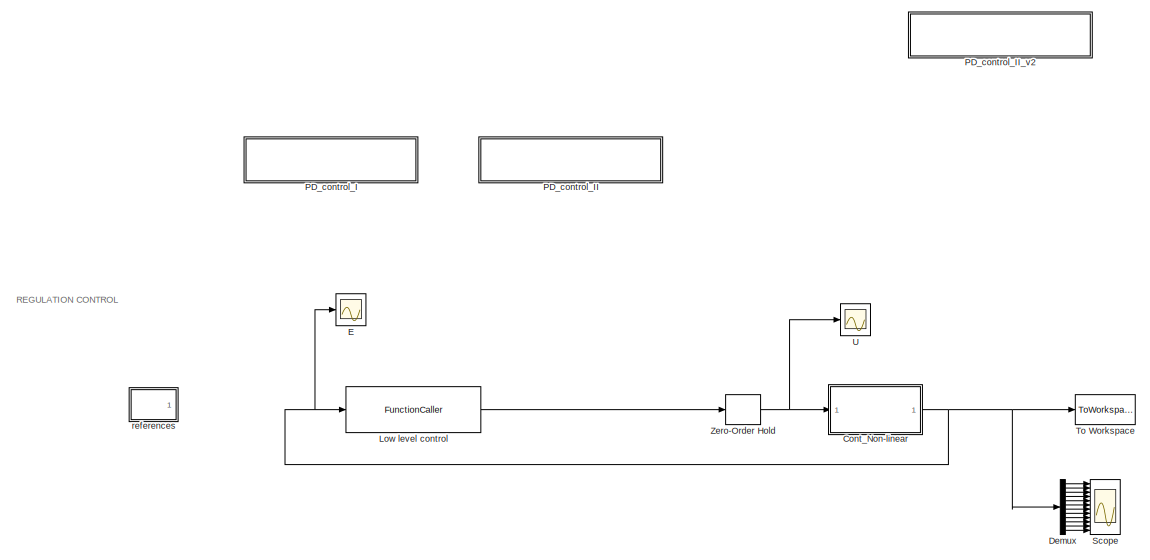
[diagram: root canvas - part 1/2, full width, top band]
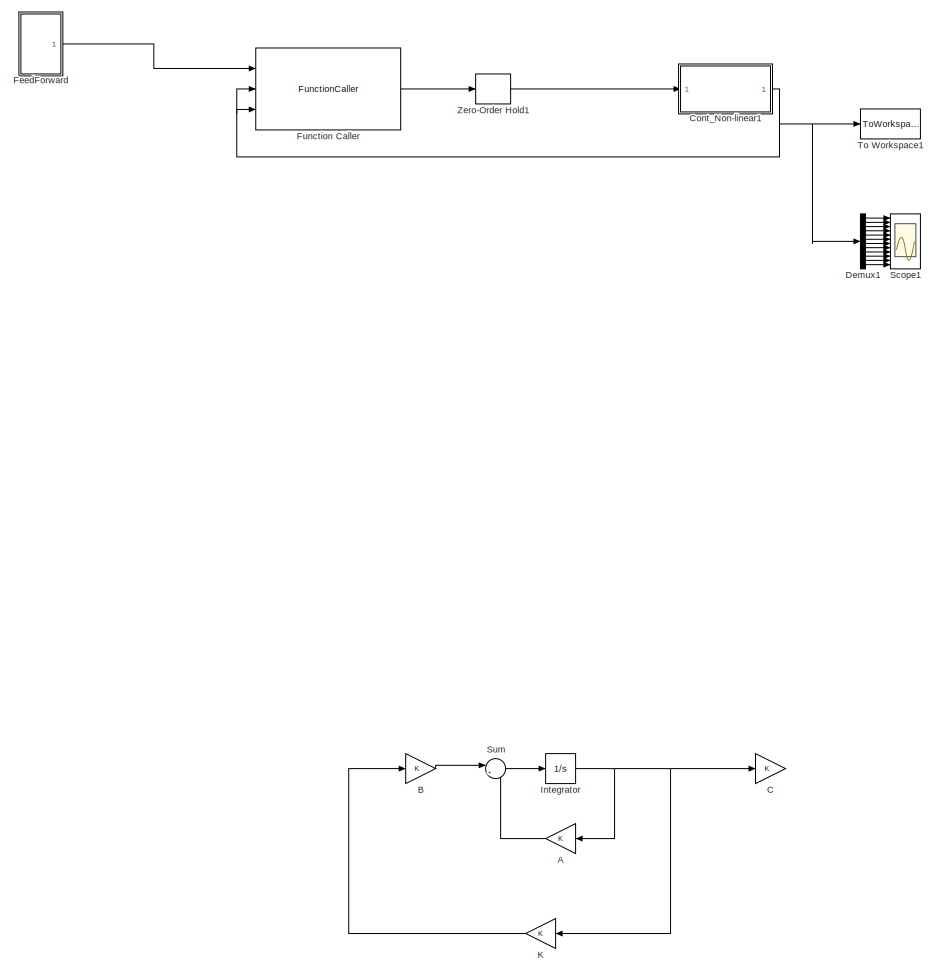
[diagram: root canvas - part 2/2, full width, bottom band]
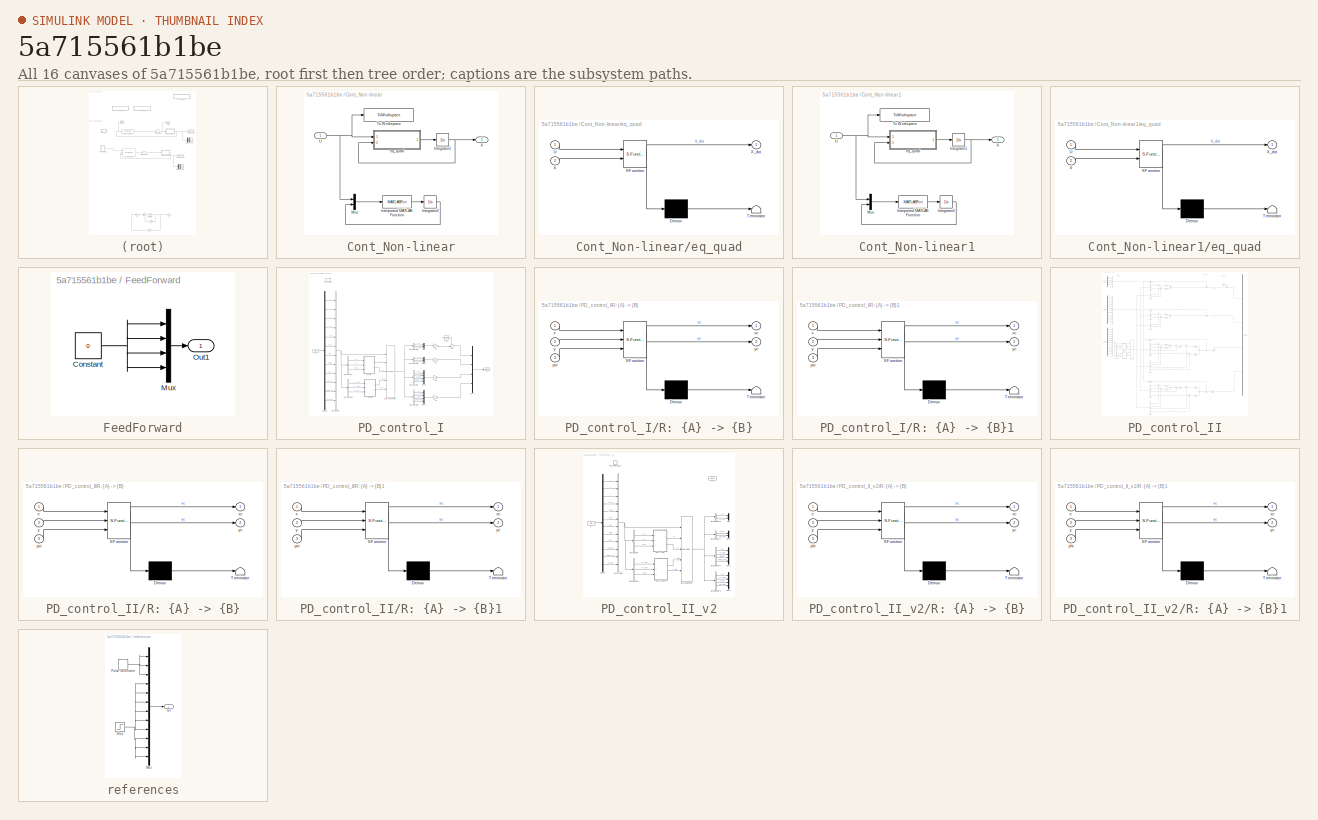
[diagram: thumbnail index - all 16 canvases of the model, root first then tree order]
MODEL slx_5a715561b1be
KIND model
CONFIG AbsTol = auto
CONFIG FixedStep = auto
CONFIG MaxStep = auto
CONFIG MinStep = auto
CONFIG RelTol = 1e-3
CONFIG SampleTimeConstraint = Unconstrained
CONFIG Solver = ode45
CONFIG SolverMode = Auto
CONFIG SolverName = ode45
CONFIG StartTime = 0.0
CONFIG StopTime = 1
BLOCK [Gain] A
  Commented = on
  OutDataTypeStr = Inherit: Inherit via internal rule
  ParamDataTypeStr = Inherit: Inherit via internal rule
  SaturateOnIntegerOverflow = off
BLOCK [Gain] B
  Commented = on
  OutDataTypeStr = Inherit: Inherit via internal rule
  ParamDataTypeStr = Inherit: Inherit via internal rule
  SaturateOnIntegerOverflow = off
BLOCK [Gain] C
  Commented = on
  OutDataTypeStr = Inherit: Inherit via internal rule
  ParamDataTypeStr = Inherit: Inherit via internal rule
  SaturateOnIntegerOverflow = off
BLOCK [SubSystem] Cont_Non-linear
  Ports = [1, 1]
  RequestExecContextInheritance = off
BLOCK [Integrator] Cont_Non-linear/Integrator1
  InitialCondition = state_init
  Ports = [1, 1]
BLOCK [Integrator] Cont_Non-linear/Integrator2
  Commented = on
  InitialCondition = state_init
  Ports = [1, 1]
BLOCK [MATLABFcn] Cont_Non-linear/Interpreted MATLAB Function
  Commented = on
  MATLABFcn = eq_quad_2
  Ports = [1, 1]
BLOCK [Mux] Cont_Non-linear/Mux
  Commented = on
  DisplayOption = bar
  Inputs = 2
  Ports = [2, 1]
BLOCK [ToWorkspace] Cont_Non-linear/To Workspace
  FixptAsFi = on
  MaxDataPoints = inf
  Ports = [1]
  SampleTime = -1
  Save2DSignal = 3-D array (concatenate along third dimension)
  SaveFormat = Timeseries
  VariableName = U_into_states
BLOCK [Inport] Cont_Non-linear/U
  IconDisplay = Port number
BLOCK [Outport] Cont_Non-linear/X
  IconDisplay = Port number
BLOCK [SubSystem] Cont_Non-linear/eq_quad
  ErrorFcn = Stateflow.Translate.translate
  PermitHierarchicalResolution = ExplicitOnly
  Ports = [2, 1]
  RequestExecContextInheritance = off
  SFBlockType = MATLAB Function
  TreatAsAtomicUnit = on
BLOCK [Demux] Cont_Non-linear/eq_quad/ Demux 
  Outputs = 1
  Ports = [1, 1]
BLOCK [S-Function] Cont_Non-linear/eq_quad/ SFunction 
  EnableBusSupport = on
  FunctionName = sf_sfun
  PortCounts = [2 2]
  Ports = [2, 2]
  Tag = Stateflow S-Function PD_sim 2
BLOCK [Terminator] Cont_Non-linear/eq_quad/ Terminator 
BLOCK [Inport] Cont_Non-linear/eq_quad/U
  IconDisplay = Port number
BLOCK [Inport] Cont_Non-linear/eq_quad/X
  IconDisplay = Port number
  Port = 2
BLOCK [Outport] Cont_Non-linear/eq_quad/X_dot
  IconDisplay = Port number
BLOCK [SubSystem] Cont_Non-linear1
  Ports = [1, 1]
  RequestExecContextInheritance = off
BLOCK [Integrator] Cont_Non-linear1/Integrator1
  InitialCondition = state_init
  Ports = [1, 1]
BLOCK [Integrator] Cont_Non-linear1/Integrator2
  Commented = on
  InitialCondition = state_init
  Ports = [1, 1]
BLOCK [MATLABFcn] Cont_Non-linear1/Interpreted MATLAB Function
  Commented = on
  MATLABFcn = eq_quad_2
  Ports = [1, 1]
BLOCK [Mux] Cont_Non-linear1/Mux
  Commented = on
  DisplayOption = bar
  Inputs = 2
  Ports = [2, 1]
BLOCK [ToWorkspace] Cont_Non-linear1/To Workspace
  FixptAsFi = on
  MaxDataPoints = inf
  Ports = [1]
  SampleTime = -1
  Save2DSignal = 3-D array (concatenate along third dimension)
  SaveFormat = Timeseries
  VariableName = U_into_states_2
BLOCK [Inport] Cont_Non-linear1/U
  IconDisplay = Port number
BLOCK [Outport] Cont_Non-linear1/X
  IconDisplay = Port number
BLOCK [SubSystem] Cont_Non-linear1/eq_quad
  ErrorFcn = Stateflow.Translate.translate
  PermitHierarchicalResolution = ExplicitOnly
  Ports = [2, 1]
  RequestExecContextInheritance = off
  SFBlockType = MATLAB Function
  TreatAsAtomicUnit = on
BLOCK [Demux] Cont_Non-linear1/eq_quad/ Demux 
  Outputs = 1
  Ports = [1, 1]
BLOCK [S-Function] Cont_Non-linear1/eq_quad/ SFunction 
  EnableBusSupport = on
  FunctionName = sf_sfun
  PortCounts = [2 2]
  Ports = [2, 2]
  Tag = Stateflow S-Function PD_sim 8
BLOCK [Terminator] Cont_Non-linear1/eq_quad/ Terminator 
BLOCK [Inport] Cont_Non-linear1/eq_quad/U
  IconDisplay = Port number
BLOCK [Inport] Cont_Non-linear1/eq_quad/X
  IconDisplay = Port number
  Port = 2
BLOCK [Outport] Cont_Non-linear1/eq_quad/X_dot
  IconDisplay = Port number
BLOCK [Demux] Demux
  DisplayOption = bar
  Outputs = 12
  Ports = [1, 12]
BLOCK [Demux] Demux1
  DisplayOption = bar
  Outputs = 12
  Ports = [1, 12]
BLOCK [Scope] E
  Floating = off
  NumInputPorts = 1
  Ports = [1]
  SaveName = ScopeData2
  YMax = 1.1e+09
  YMin = -1e+08
BLOCK [SubSystem] FeedForward
  Ports = [0, 1]
  RequestExecContextInheritance = off
BLOCK [Constant] FeedForward/Constant
  Value = 0
BLOCK [Mux] FeedForward/Mux
  DisplayOption = bar
  Ports = [4, 1]
BLOCK [Outport] FeedForward/Out1
  IconDisplay = Port number
BLOCK [FunctionCaller] Function Caller
  FunctionPrototype = U = PD_control_II(FF,R,X)
  Ports = [3, 1]
BLOCK [Integrator] Integrator
  Commented = on
  Ports = [1, 1]
BLOCK [Gain] K
  Commented = on
  OutDataTypeStr = Inherit: Inherit via internal rule
  ParamDataTypeStr = Inherit: Inherit via internal rule
  SaturateOnIntegerOverflow = off
BLOCK [FunctionCaller] Low level control
  FunctionPrototype = U = PD_control(E)
  Ports = [1, 1]
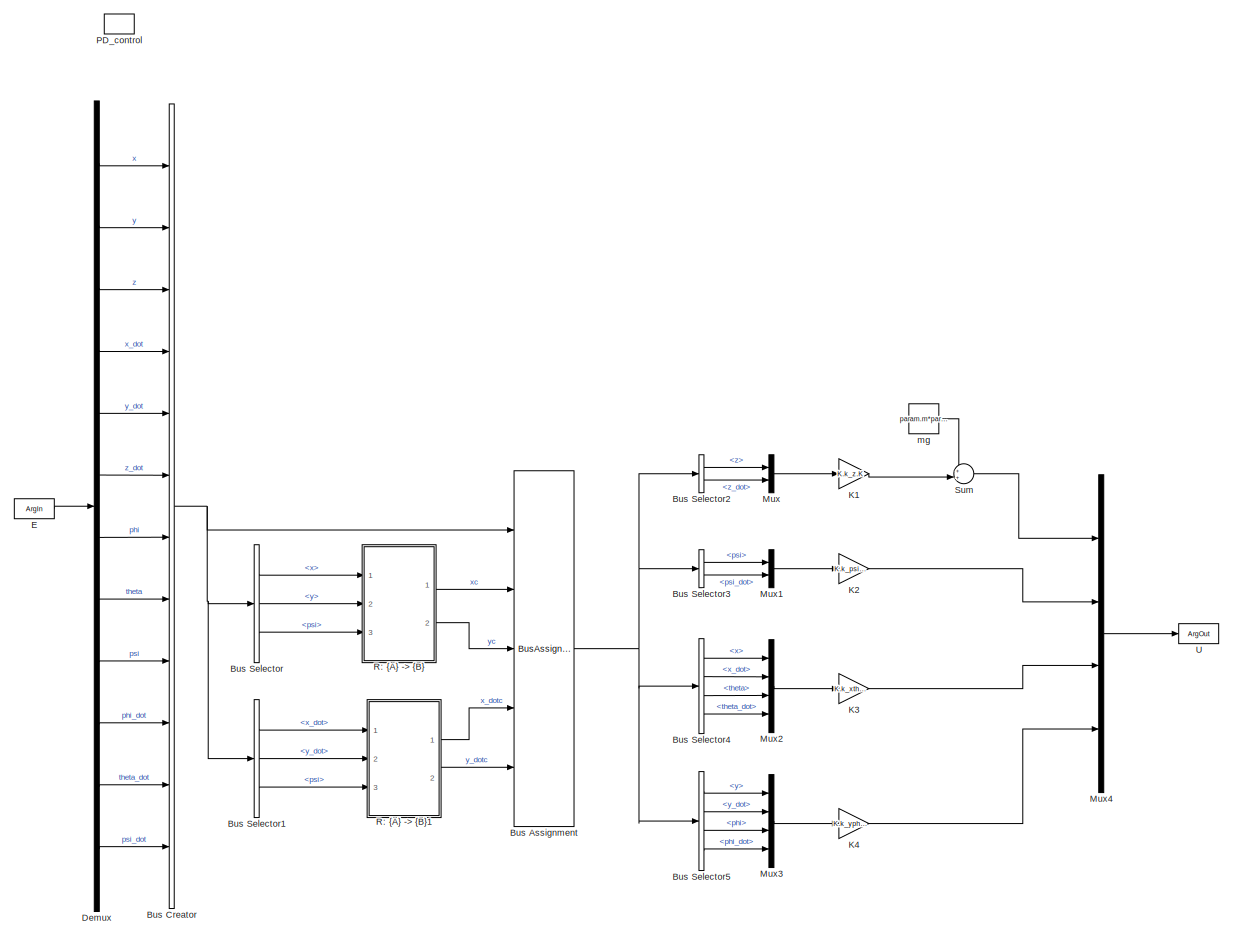
[diagram: PD_control_I - part 1/1, most of the canvas]
BLOCK [SubSystem] PD_control_I
  Ports = [0, 0, 0, 1]
  RequestExecContextInheritance = off
  TreatAsAtomicUnit = on
BLOCK [BusAssignment] PD_control_I/Bus Assignment
  AssignedSignals = x,y,x_dot,y_dot
  Ports = [5, 1]
BLOCK [BusCreator] PD_control_I/Bus Creator
  DisplayOption = bar
  Inputs = 12
  Ports = [12, 1]
BLOCK [BusSelector] PD_control_I/Bus Selector
  OutputSignals = x,y,psi
  Ports = [1, 3]
BLOCK [BusSelector] PD_control_I/Bus Selector1
  OutputSignals = x_dot,y_dot,psi
  Ports = [1, 3]
BLOCK [BusSelector] PD_control_I/Bus Selector2
  OutputSignals = z,z_dot
  Ports = [1, 2]
BLOCK [BusSelector] PD_control_I/Bus Selector3
  OutputSignals = psi,psi_dot
  Ports = [1, 2]
BLOCK [BusSelector] PD_control_I/Bus Selector4
  OutputSignals = x,x_dot,theta,theta_dot
  Ports = [1, 4]
BLOCK [BusSelector] PD_control_I/Bus Selector5
  OutputSignals = y,y_dot,phi,phi_dot
  Ports = [1, 4]
BLOCK [Demux] PD_control_I/Demux
  DisplayOption = bar
  Outputs = 12
  Ports = [1, 12]
BLOCK [ArgIn] PD_control_I/E
  ArgumentName = E
  DisableCoverage = on
  PortDimensions = 12
BLOCK [Gain] PD_control_I/K1
  Gain = K.k_z.K
  Multiplication = Matrix(K*u)
  OutDataTypeStr = Inherit: Inherit via internal rule
  ParamDataTypeStr = Inherit: Inherit via internal rule
  SaturateOnIntegerOverflow = off
BLOCK [Gain] PD_control_I/K2
  Gain = K.k_psi.K
  Multiplication = Matrix(K*u)
  OutDataTypeStr = Inherit: Inherit via internal rule
  ParamDataTypeStr = Inherit: Inherit via internal rule
  SaturateOnIntegerOverflow = off
BLOCK [Gain] PD_control_I/K3
  Gain = K.k_xtheta.K
  Multiplication = Matrix(K*u)
  OutDataTypeStr = Inherit: Inherit via internal rule
  ParamDataTypeStr = Inherit: Inherit via internal rule
  SaturateOnIntegerOverflow = off
BLOCK [Gain] PD_control_I/K4
  Gain = K.k_yphi.K
  Multiplication = Matrix(K*u)
  OutDataTypeStr = Inherit: Inherit via internal rule
  ParamDataTypeStr = Inherit: Inherit via internal rule
  SaturateOnIntegerOverflow = off
BLOCK [Mux] PD_control_I/Mux
  DisplayOption = bar
  Inputs = 2
  Ports = [2, 1]
BLOCK [Mux] PD_control_I/Mux1
  DisplayOption = bar
  Inputs = 2
  Ports = [2, 1]
BLOCK [Mux] PD_control_I/Mux2
  DisplayOption = bar
  Ports = [4, 1]
BLOCK [Mux] PD_control_I/Mux3
  DisplayOption = bar
  Ports = [4, 1]
BLOCK [Mux] PD_control_I/Mux4
  DisplayOption = bar
  Ports = [4, 1]
BLOCK [TriggerPort] PD_control_I/PD_control
  FunctionName = PD_control
  IsSimulinkFunction = on
  Ports = []
  StatesWhenEnabling = held
  TriggerType = function-call
BLOCK [SubSystem] PD_control_I/R: {A} -> {B}
  ErrorFcn = Stateflow.Translate.translate
  PermitHierarchicalResolution = ExplicitOnly
  Ports = [3, 2]
  RequestExecContextInheritance = off
  SFBlockType = MATLAB Function
  TreatAsAtomicUnit = on
BLOCK [Demux] PD_control_I/R: {A} -> {B}/ Demux 
  Outputs = 1
  Ports = [1, 1]
BLOCK [S-Function] PD_control_I/R: {A} -> {B}/ SFunction 
  EnableBusSupport = on
  FunctionName = sf_sfun
  PortCounts = [3 3]
  Ports = [3, 3]
  Tag = Stateflow S-Function PD_sim 1
BLOCK [Terminator] PD_control_I/R: {A} -> {B}/ Terminator 
BLOCK [Inport] PD_control_I/R: {A} -> {B}/psi
  IconDisplay = Port number
  Port = 3
BLOCK [Inport] PD_control_I/R: {A} -> {B}/x
  IconDisplay = Port number
BLOCK [Outport] PD_control_I/R: {A} -> {B}/xc
  IconDisplay = Port number
BLOCK [Inport] PD_control_I/R: {A} -> {B}/y
  IconDisplay = Port number
  Port = 2
BLOCK [Outport] PD_control_I/R: {A} -> {B}/yc
  IconDisplay = Port number
  Port = 2
BLOCK [SubSystem] PD_control_I/R: {A} -> {B}1
  ErrorFcn = Stateflow.Translate.translate
  PermitHierarchicalResolution = ExplicitOnly
  Ports = [3, 2]
  RequestExecContextInheritance = off
  SFBlockType = MATLAB Function
  TreatAsAtomicUnit = on
BLOCK [Demux] PD_control_I/R: {A} -> {B}1/ Demux 
  Outputs = 1
  Ports = [1, 1]
BLOCK [S-Function] PD_control_I/R: {A} -> {B}1/ SFunction 
  EnableBusSupport = on
  FunctionName = sf_sfun
  PortCounts = [3 3]
  Ports = [3, 3]
  Tag = Stateflow S-Function PD_sim 3
BLOCK [Terminator] PD_control_I/R: {A} -> {B}1/ Terminator 
BLOCK [Inport] PD_control_I/R: {A} -> {B}1/psi
  IconDisplay = Port number
  Port = 3
BLOCK [Inport] PD_control_I/R: {A} -> {B}1/x
  IconDisplay = Port number
BLOCK [Outport] PD_control_I/R: {A} -> {B}1/xc
  IconDisplay = Port number
BLOCK [Inport] PD_control_I/R: {A} -> {B}1/y
  IconDisplay = Port number
  Port = 2
BLOCK [Outport] PD_control_I/R: {A} -> {B}1/yc
  IconDisplay = Port number
  Port = 2
BLOCK [Sum] PD_control_I/Sum
  IconShape = round
  InputSameDT = off
  Inputs = ++|
  OutDataTypeStr = Inherit: Inherit via internal rule
  Ports = [2, 1]
  SaturateOnIntegerOverflow = off
BLOCK [ArgOut] PD_control_I/U
  ArgumentName = U
  DisableCoverage = on
  PortDimensions = 4
BLOCK [Constant] PD_control_I/mg
  SampleTime = -1
  Value = param.m*param.g
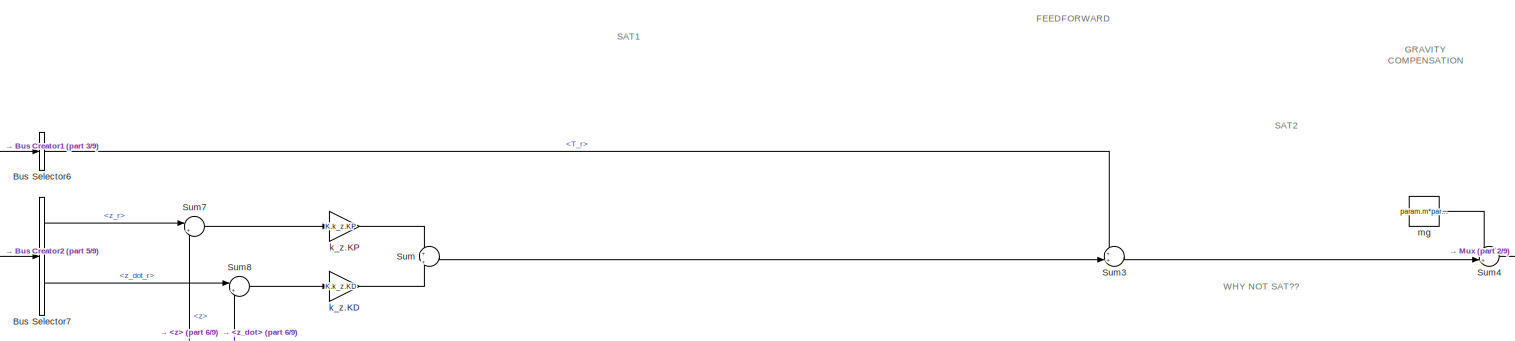
[diagram: PD_control_II - part 1/9, top center region]
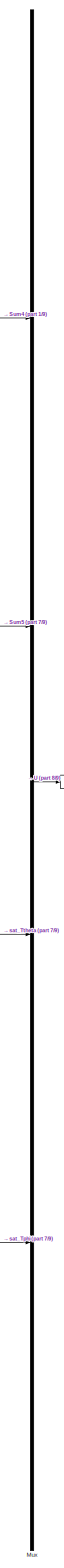
[diagram: PD_control_II - part 2/9, right side, full height]
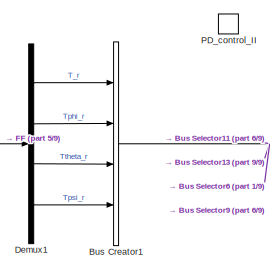
[diagram: PD_control_II - part 3/9, top left region]
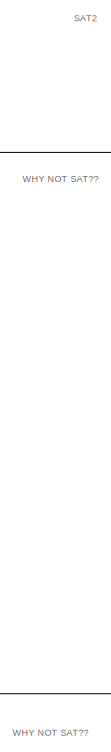
[diagram: PD_control_II - part 4/9, top right region]
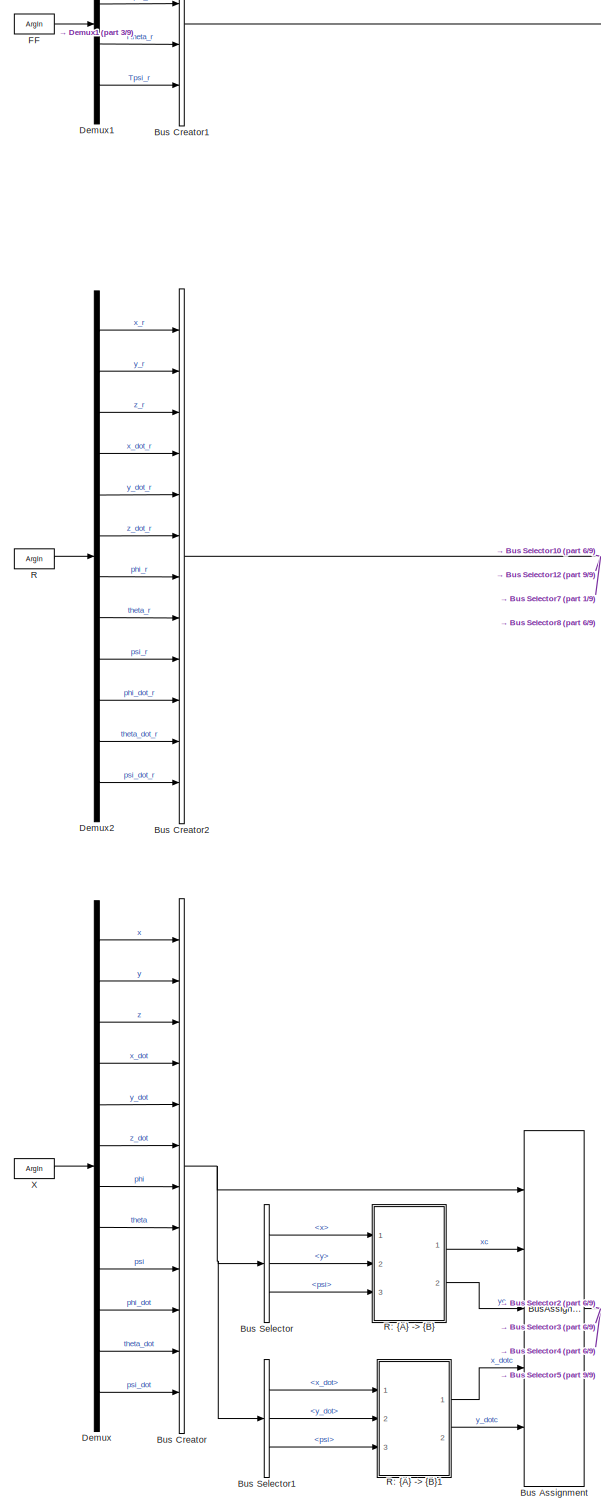
[diagram: PD_control_II - part 5/9, middle left region]
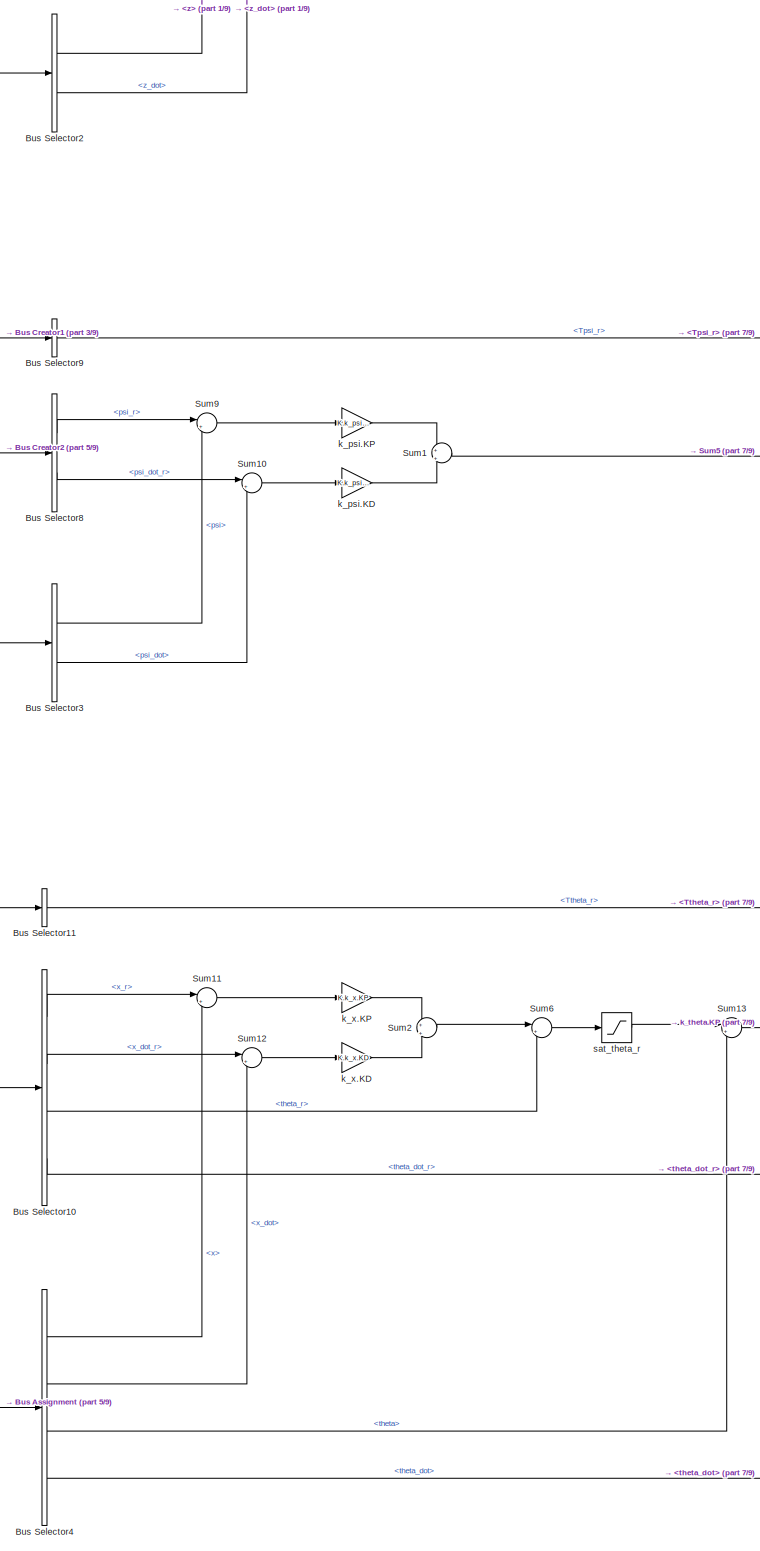
[diagram: PD_control_II - part 6/9, central region]
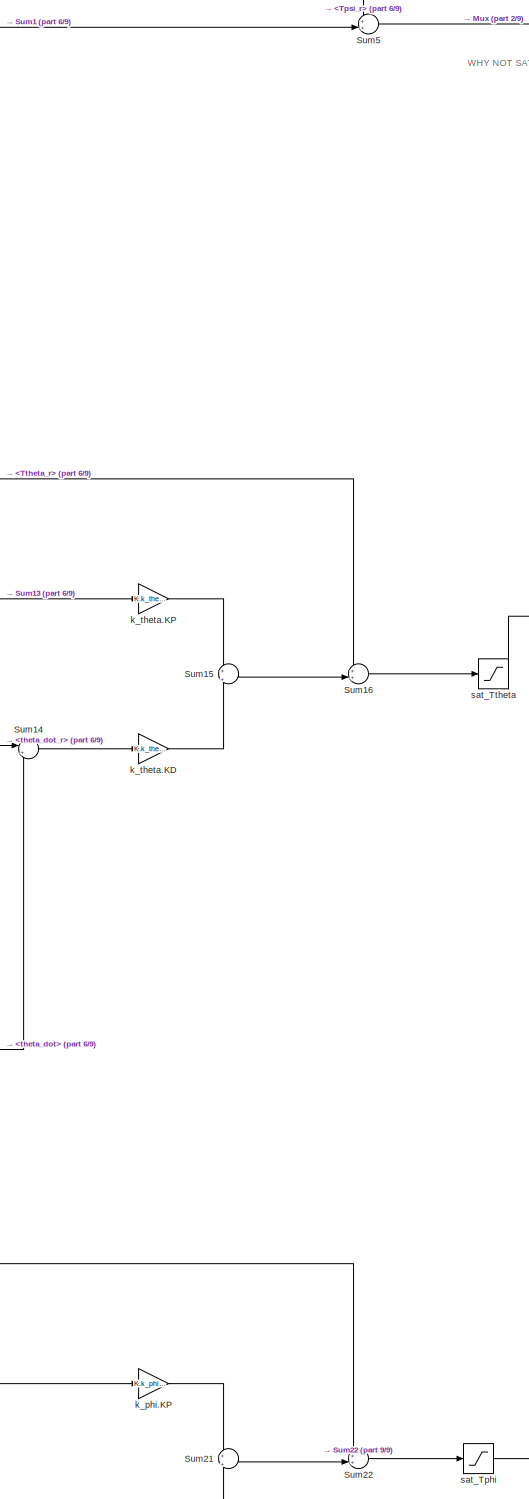
[diagram: PD_control_II - part 7/9, middle right region]
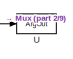
[diagram: PD_control_II - part 8/9, middle right region]
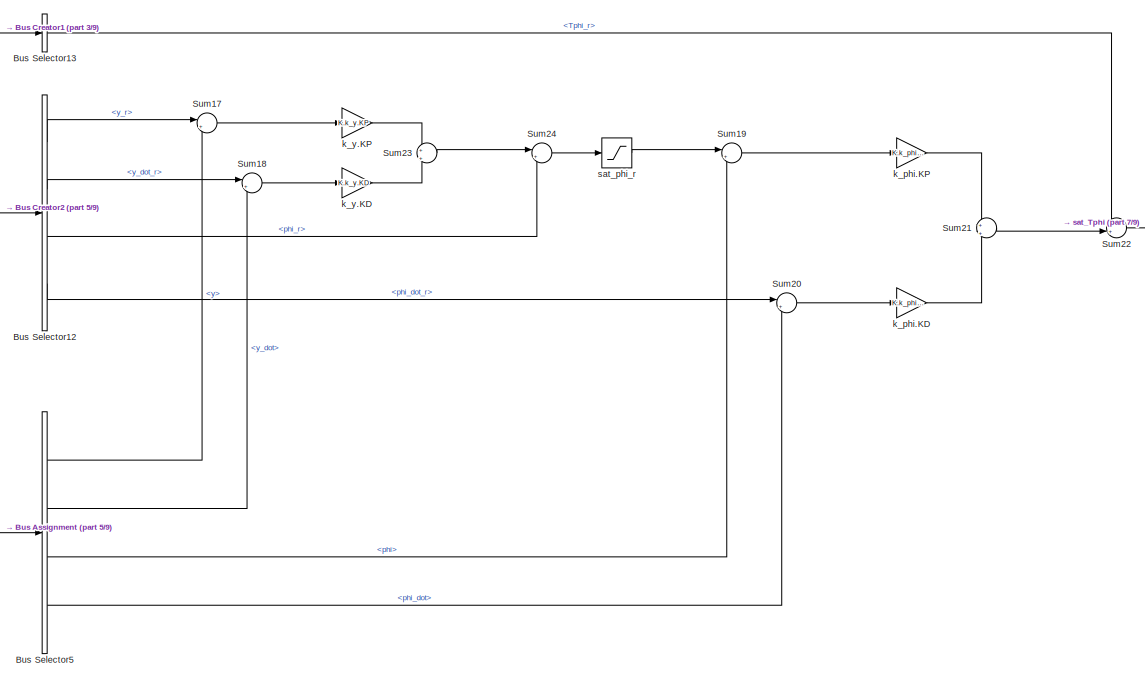
[diagram: PD_control_II - part 9/9, bottom center region]
BLOCK [SubSystem] PD_control_II
  Ports = [0, 0, 0, 1]
  RequestExecContextInheritance = off
  TreatAsAtomicUnit = on
BLOCK [BusAssignment] PD_control_II/Bus Assignment
  AssignedSignals = x,y,x_dot,y_dot
  Ports = [5, 1]
BLOCK [BusCreator] PD_control_II/Bus Creator
  DisplayOption = bar
  Inputs = 12
  Ports = [12, 1]
BLOCK [BusCreator] PD_control_II/Bus Creator1
  DisplayOption = bar
  Ports = [4, 1]
BLOCK [BusCreator] PD_control_II/Bus Creator2
  DisplayOption = bar
  Inputs = 12
  Ports = [12, 1]
BLOCK [BusSelector] PD_control_II/Bus Selector
  OutputSignals = x,y,psi
  Ports = [1, 3]
BLOCK [BusSelector] PD_control_II/Bus Selector1
  OutputSignals = x_dot,y_dot,psi
  Ports = [1, 3]
BLOCK [BusSelector] PD_control_II/Bus Selector10
  OutputSignals = x_r,x_dot_r,theta_r,theta_dot_r
  Ports = [1, 4]
BLOCK [BusSelector] PD_control_II/Bus Selector11
  OutputSignals = Ttheta_r
  Ports = [1, 1]
BLOCK [BusSelector] PD_control_II/Bus Selector12
  OutputSignals = y_r,y_dot_r,phi_r,phi_dot_r
  Ports = [1, 4]
BLOCK [BusSelector] PD_control_II/Bus Selector13
  OutputSignals = Tphi_r
  Ports = [1, 1]
BLOCK [BusSelector] PD_control_II/Bus Selector2
  OutputSignals = z,z_dot
  Ports = [1, 2]
BLOCK [BusSelector] PD_control_II/Bus Selector3
  OutputSignals = psi,psi_dot
  Ports = [1, 2]
BLOCK [BusSelector] PD_control_II/Bus Selector4
  OutputSignals = x,x_dot,theta,theta_dot
  Ports = [1, 4]
BLOCK [BusSelector] PD_control_II/Bus Selector5
  OutputSignals = y,y_dot,phi,phi_dot
  Ports = [1, 4]
BLOCK [BusSelector] PD_control_II/Bus Selector6
  OutputSignals = T_r
  Ports = [1, 1]
BLOCK [BusSelector] PD_control_II/Bus Selector7
  OutputSignals = z_r,z_dot_r
  Ports = [1, 2]
BLOCK [BusSelector] PD_control_II/Bus Selector8
  OutputSignals = psi_r,psi_dot_r
  Ports = [1, 2]
BLOCK [BusSelector] PD_control_II/Bus Selector9
  OutputSignals = Tpsi_r
  Ports = [1, 1]
BLOCK [Demux] PD_control_II/Demux
  DisplayOption = bar
  Outputs = 12
  Ports = [1, 12]
BLOCK [Demux] PD_control_II/Demux1
  DisplayOption = bar
  Ports = [1, 4]
BLOCK [Demux] PD_control_II/Demux2
  DisplayOption = bar
  Outputs = 12
  Ports = [1, 12]
BLOCK [ArgIn] PD_control_II/FF
  ArgumentName = FF
  DisableCoverage = on
  PortDimensions = 4
BLOCK [Mux] PD_control_II/Mux
  DisplayOption = bar
  Ports = [4, 1]
BLOCK [TriggerPort] PD_control_II/PD_control_II
  FunctionName = PD_control_II
  IsSimulinkFunction = on
  Ports = []
  StatesWhenEnabling = held
  TriggerType = function-call
BLOCK [ArgIn] PD_control_II/R
  ArgumentName = R
  Port = 2
  PortDimensions = 12
BLOCK [SubSystem] PD_control_II/R: {A} -> {B}
  ErrorFcn = Stateflow.Translate.translate
  PermitHierarchicalResolution = ExplicitOnly
  Ports = [3, 2]
  RequestExecContextInheritance = off
  SFBlockType = MATLAB Function
  TreatAsAtomicUnit = on
BLOCK [Demux] PD_control_II/R: {A} -> {B}/ Demux 
  Outputs = 1
  Ports = [1, 1]
BLOCK [S-Function] PD_control_II/R: {A} -> {B}/ SFunction 
  EnableBusSupport = on
  FunctionName = sf_sfun
  PortCounts = [3 3]
  Ports = [3, 3]
  Tag = Stateflow S-Function PD_sim 4
BLOCK [Terminator] PD_control_II/R: {A} -> {B}/ Terminator 
BLOCK [Inport] PD_control_II/R: {A} -> {B}/psi
  IconDisplay = Port number
  Port = 3
BLOCK [Inport] PD_control_II/R: {A} -> {B}/x
  IconDisplay = Port number
BLOCK [Outport] PD_control_II/R: {A} -> {B}/xc
  IconDisplay = Port number
BLOCK [Inport] PD_control_II/R: {A} -> {B}/y
  IconDisplay = Port number
  Port = 2
BLOCK [Outport] PD_control_II/R: {A} -> {B}/yc
  IconDisplay = Port number
  Port = 2
BLOCK [SubSystem] PD_control_II/R: {A} -> {B}1
  ErrorFcn = Stateflow.Translate.translate
  PermitHierarchicalResolution = ExplicitOnly
  Ports = [3, 2]
  RequestExecContextInheritance = off
  SFBlockType = MATLAB Function
  TreatAsAtomicUnit = on
BLOCK [Demux] PD_control_II/R: {A} -> {B}1/ Demux 
  Outputs = 1
  Ports = [1, 1]
BLOCK [S-Function] PD_control_II/R: {A} -> {B}1/ SFunction 
  EnableBusSupport = on
  FunctionName = sf_sfun
  PortCounts = [3 3]
  Ports = [3, 3]
  Tag = Stateflow S-Function PD_sim 5
BLOCK [Terminator] PD_control_II/R: {A} -> {B}1/ Terminator 
BLOCK [Inport] PD_control_II/R: {A} -> {B}1/psi
  IconDisplay = Port number
  Port = 3
BLOCK [Inport] PD_control_II/R: {A} -> {B}1/x
  IconDisplay = Port number
BLOCK [Outport] PD_control_II/R: {A} -> {B}1/xc
  IconDisplay = Port number
BLOCK [Inport] PD_control_II/R: {A} -> {B}1/y
  IconDisplay = Port number
  Port = 2
BLOCK [Outport] PD_control_II/R: {A} -> {B}1/yc
  IconDisplay = Port number
  Port = 2
BLOCK [Sum] PD_control_II/Sum
  IconShape = round
  InputSameDT = off
  Inputs = +|+
  OutDataTypeStr = Inherit: Inherit via internal rule
  Ports = [2, 1]
  SaturateOnIntegerOverflow = off
BLOCK [Sum] PD_control_II/Sum1
  IconShape = round
  InputSameDT = off
  Inputs = +|+
  OutDataTypeStr = Inherit: Inherit via internal rule
  Ports = [2, 1]
  SaturateOnIntegerOverflow = off
BLOCK [Sum] PD_control_II/Sum10
  IconShape = round
  InputSameDT = off
  Inputs = |+-
  OutDataTypeStr = Inherit: Inherit via internal rule
  Ports = [2, 1]
  SaturateOnIntegerOverflow = off
BLOCK [Sum] PD_control_II/Sum11
  IconShape = round
  InputSameDT = off
  Inputs = |+-
  OutDataTypeStr = Inherit: Inherit via internal rule
  Ports = [2, 1]
  SaturateOnIntegerOverflow = off
BLOCK [Sum] PD_control_II/Sum12
  IconShape = round
  InputSameDT = off
  Inputs = |+-
  OutDataTypeStr = Inherit: Inherit via internal rule
  Ports = [2, 1]
  SaturateOnIntegerOverflow = off
BLOCK [Sum] PD_control_II/Sum13
  IconShape = round
  InputSameDT = off
  Inputs = |+-
  OutDataTypeStr = Inherit: Inherit via internal rule
  Ports = [2, 1]
  SaturateOnIntegerOverflow = off
BLOCK [Sum] PD_control_II/Sum14
  IconShape = round
  InputSameDT = off
  Inputs = |+-
  OutDataTypeStr = Inherit: Inherit via internal rule
  Ports = [2, 1]
  SaturateOnIntegerOverflow = off
BLOCK [Sum] PD_control_II/Sum15
  IconShape = round
  InputSameDT = off
  Inputs = +|+
  OutDataTypeStr = Inherit: Inherit via internal rule
  Ports = [2, 1]
  SaturateOnIntegerOverflow = off
BLOCK [Sum] PD_control_II/Sum16
  IconShape = round
  InputSameDT = off
  Inputs = ++|
  OutDataTypeStr = Inherit: Inherit via internal rule
  Ports = [2, 1]
  SaturateOnIntegerOverflow = off
BLOCK [Sum] PD_control_II/Sum17
  IconShape = round
  InputSameDT = off
  Inputs = |+-
  OutDataTypeStr = Inherit: Inherit via internal rule
  Ports = [2, 1]
  SaturateOnIntegerOverflow = off
BLOCK [Sum] PD_control_II/Sum18
  IconShape = round
  InputSameDT = off
  Inputs = |+-
  OutDataTypeStr = Inherit: Inherit via internal rule
  Ports = [2, 1]
  SaturateOnIntegerOverflow = off
BLOCK [Sum] PD_control_II/Sum19
  IconShape = round
  InputSameDT = off
  Inputs = |+-
  OutDataTypeStr = Inherit: Inherit via internal rule
  Ports = [2, 1]
  SaturateOnIntegerOverflow = off
BLOCK [Sum] PD_control_II/Sum2
  IconShape = round
  InputSameDT = off
  Inputs = +|+
  OutDataTypeStr = Inherit: Inherit via internal rule
  Ports = [2, 1]
  SaturateOnIntegerOverflow = off
BLOCK [Sum] PD_control_II/Sum20
  IconShape = round
  InputSameDT = off
  Inputs = |+-
  OutDataTypeStr = Inherit: Inherit via internal rule
  Ports = [2, 1]
  SaturateOnIntegerOverflow = off
BLOCK [Sum] PD_control_II/Sum21
  IconShape = round
  InputSameDT = off
  Inputs = +|+
  OutDataTypeStr = Inherit: Inherit via internal rule
  Ports = [2, 1]
  SaturateOnIntegerOverflow = off
BLOCK [Sum] PD_control_II/Sum22
  IconShape = round
  InputSameDT = off
  Inputs = ++|
  OutDataTypeStr = Inherit: Inherit via internal rule
  Ports = [2, 1]
  SaturateOnIntegerOverflow = off
BLOCK [Sum] PD_control_II/Sum23
  IconShape = round
  InputSameDT = off
  Inputs = +|+
  OutDataTypeStr = Inherit: Inherit via internal rule
  Ports = [2, 1]
  SaturateOnIntegerOverflow = off
BLOCK [Sum] PD_control_II/Sum24
  IconShape = round
  InputSameDT = off
  Inputs = |++
  OutDataTypeStr = Inherit: Inherit via internal rule
  Ports = [2, 1]
  SaturateOnIntegerOverflow = off
BLOCK [Sum] PD_control_II/Sum3
  IconShape = round
  InputSameDT = off
  Inputs = ++|
  OutDataTypeStr = Inherit: Inherit via internal rule
  Ports = [2, 1]
  SaturateOnIntegerOverflow = off
BLOCK [Sum] PD_control_II/Sum4
  IconShape = round
  InputSameDT = off
  Inputs = ++|
  OutDataTypeStr = Inherit: Inherit via internal rule
  Ports = [2, 1]
  SaturateOnIntegerOverflow = off
BLOCK [Sum] PD_control_II/Sum5
  IconShape = round
  InputSameDT = off
  Inputs = ++|
  OutDataTypeStr = Inherit: Inherit via internal rule
  Ports = [2, 1]
  SaturateOnIntegerOverflow = off
BLOCK [Sum] PD_control_II/Sum6
  IconShape = round
  InputSameDT = off
  Inputs = |++
  OutDataTypeStr = Inherit: Inherit via internal rule
  Ports = [2, 1]
  SaturateOnIntegerOverflow = off
BLOCK [Sum] PD_control_II/Sum7
  IconShape = round
  InputSameDT = off
  Inputs = |+-
  OutDataTypeStr = Inherit: Inherit via internal rule
  Ports = [2, 1]
  SaturateOnIntegerOverflow = off
BLOCK [Sum] PD_control_II/Sum8
  IconShape = round
  InputSameDT = off
  Inputs = |+-
  OutDataTypeStr = Inherit: Inherit via internal rule
  Ports = [2, 1]
  SaturateOnIntegerOverflow = off
BLOCK [Sum] PD_control_II/Sum9
  IconShape = round
  InputSameDT = off
  Inputs = |+-
  OutDataTypeStr = Inherit: Inherit via internal rule
  Ports = [2, 1]
  SaturateOnIntegerOverflow = off
BLOCK [ArgOut] PD_control_II/U
  ArgumentName = U
  DisableCoverage = on
  PortDimensions = 4
BLOCK [ArgIn] PD_control_II/X
  ArgumentName = X
  Port = 3
  PortDimensions = 12
BLOCK [Gain] PD_control_II/k_phi.KD
  Gain = K.k_phi.KD
  OutDataTypeStr = Inherit: Inherit via internal rule
  ParamDataTypeStr = Inherit: Inherit via internal rule
  SaturateOnIntegerOverflow = off
BLOCK [Gain] PD_control_II/k_phi.KP
  Gain = K.k_phi.KP
  OutDataTypeStr = Inherit: Inherit via internal rule
  ParamDataTypeStr = Inherit: Inherit via internal rule
  SaturateOnIntegerOverflow = off
BLOCK [Gain] PD_control_II/k_psi.KD
  Gain = K.k_psi.KD
  OutDataTypeStr = Inherit: Inherit via internal rule
  ParamDataTypeStr = Inherit: Inherit via internal rule
  SaturateOnIntegerOverflow = off
BLOCK [Gain] PD_control_II/k_psi.KP
  Gain = K.k_psi.KP
  OutDataTypeStr = Inherit: Inherit via internal rule
  ParamDataTypeStr = Inherit: Inherit via internal rule
  SaturateOnIntegerOverflow = off
BLOCK [Gain] PD_control_II/k_theta.KD
  Gain = K.k_theta.KD
  OutDataTypeStr = Inherit: Inherit via internal rule
  ParamDataTypeStr = Inherit: Inherit via internal rule
  SaturateOnIntegerOverflow = off
BLOCK [Gain] PD_control_II/k_theta.KP
  Gain = K.k_theta.KP
  OutDataTypeStr = Inherit: Inherit via internal rule
  ParamDataTypeStr = Inherit: Inherit via internal rule
  SaturateOnIntegerOverflow = off
BLOCK [Gain] PD_control_II/k_x.KD
  Gain = K.k_x.KD
  OutDataTypeStr = Inherit: Inherit via internal rule
  ParamDataTypeStr = Inherit: Inherit via internal rule
  SaturateOnIntegerOverflow = off
BLOCK [Gain] PD_control_II/k_x.KP
  Gain = K.k_x.KP
  OutDataTypeStr = Inherit: Inherit via internal rule
  ParamDataTypeStr = Inherit: Inherit via internal rule
  SaturateOnIntegerOverflow = off
BLOCK [Gain] PD_control_II/k_y.KD
  Gain = K.k_y.KD
  OutDataTypeStr = Inherit: Inherit via internal rule
  ParamDataTypeStr = Inherit: Inherit via internal rule
  SaturateOnIntegerOverflow = off
BLOCK [Gain] PD_control_II/k_y.KP
  Gain = K.k_y.KP
  OutDataTypeStr = Inherit: Inherit via internal rule
  ParamDataTypeStr = Inherit: Inherit via internal rule
  SaturateOnIntegerOverflow = off
BLOCK [Gain] PD_control_II/k_z.KD
  Gain = K.k_z.KD
  OutDataTypeStr = Inherit: Inherit via internal rule
  ParamDataTypeStr = Inherit: Inherit via internal rule
  SaturateOnIntegerOverflow = off
BLOCK [Gain] PD_control_II/k_z.KP
  Gain = K.k_z.KP
  OutDataTypeStr = Inherit: Inherit via internal rule
  ParamDataTypeStr = Inherit: Inherit via internal rule
  SaturateOnIntegerOverflow = off
BLOCK [Constant] PD_control_II/mg
  Value = param.m*param.g
BLOCK [Saturate] PD_control_II/sat_Tphi
  InputPortMap = u0
  LowerLimit = param.sat.Tphi.min
  Ports = [1, 1]
  UpperLimit = param.sat.Tphi.max
BLOCK [Saturate] PD_control_II/sat_Ttheta
  InputPortMap = u0
  LowerLimit = param.sat.Ttheta.min
  Ports = [1, 1]
  UpperLimit = param.sat.Ttheta.max
BLOCK [Saturate] PD_control_II/sat_phi_r
  InputPortMap = u0
  LowerLimit = param.sat.phi_r.min
  Ports = [1, 1]
  UpperLimit = param.sat.phi_r.max
BLOCK [Saturate] PD_control_II/sat_theta_r
  InputPortMap = u0
  LowerLimit = param.sat.theta_r.min
  Ports = [1, 1]
  UpperLimit = param.sat.theta_r.max
BLOCK [SubSystem] PD_control_II_v2
  Ports = [0, 0, 0, 1]
  RequestExecContextInheritance = off
  TreatAsAtomicUnit = on
BLOCK [BusAssignment] PD_control_II_v2/Bus Assignment
  AssignedSignals = x,y,x_dot,y_dot
  Ports = [5, 1]
BLOCK [BusCreator] PD_control_II_v2/Bus Creator
  DisplayOption = bar
  Inputs = 12
  Ports = [12, 1]
BLOCK [BusSelector] PD_control_II_v2/Bus Selector
  OutputSignals = x,y,psi
  Ports = [1, 3]
BLOCK [BusSelector] PD_control_II_v2/Bus Selector1
  OutputSignals = x_dot,y_dot,psi
  Ports = [1, 3]
BLOCK [BusSelector] PD_control_II_v2/Bus Selector2
  OutputSignals = z,z_dot
  Ports = [1, 2]
BLOCK [BusSelector] PD_control_II_v2/Bus Selector3
  OutputSignals = psi,psi_dot
  Ports = [1, 2]
BLOCK [BusSelector] PD_control_II_v2/Bus Selector4
  OutputSignals = x,x_dot,theta,theta_dot
  Ports = [1, 4]
BLOCK [BusSelector] PD_control_II_v2/Bus Selector5
  OutputSignals = y,y_dot,phi,phi_dot
  Ports = [1, 4]
BLOCK [Demux] PD_control_II_v2/Demux
  DisplayOption = bar
  Outputs = 12
  Ports = [1, 12]
BLOCK [ArgIn] PD_control_II_v2/E
  ArgumentName = E
  DisableCoverage = on
  PortDimensions = 12
BLOCK [Mux] PD_control_II_v2/Mux
  DisplayOption = bar
  Inputs = 2
  Ports = [2, 1]
BLOCK [Mux] PD_control_II_v2/Mux1
  DisplayOption = bar
  Inputs = 2
  Ports = [2, 1]
BLOCK [Mux] PD_control_II_v2/Mux2
  DisplayOption = bar
  Ports = [4, 1]
BLOCK [Mux] PD_control_II_v2/Mux3
  DisplayOption = bar
  Ports = [4, 1]
BLOCK [TriggerPort] PD_control_II_v2/PD_control_II_v2
  FunctionName = PD_control_II_v2
  IsSimulinkFunction = on
  Ports = []
  StatesWhenEnabling = held
  TriggerType = function-call
BLOCK [SubSystem] PD_control_II_v2/R: {A} -> {B}
  ErrorFcn = Stateflow.Translate.translate
  PermitHierarchicalResolution = ExplicitOnly
  Ports = [3, 2]
  RequestExecContextInheritance = off
  SFBlockType = MATLAB Function
  TreatAsAtomicUnit = on
BLOCK [Demux] PD_control_II_v2/R: {A} -> {B}/ Demux 
  Outputs = 1
  Ports = [1, 1]
BLOCK [S-Function] PD_control_II_v2/R: {A} -> {B}/ SFunction 
  EnableBusSupport = on
  FunctionName = sf_sfun
  PortCounts = [3 3]
  Ports = [3, 3]
  Tag = Stateflow S-Function PD_sim 6
BLOCK [Terminator] PD_control_II_v2/R: {A} -> {B}/ Terminator 
BLOCK [Inport] PD_control_II_v2/R: {A} -> {B}/phi
  IconDisplay = Port number
  Port = 3
BLOCK [Inport] PD_control_II_v2/R: {A} -> {B}/x
  IconDisplay = Port number
BLOCK [Outport] PD_control_II_v2/R: {A} -> {B}/xc
  IconDisplay = Port number
BLOCK [Inport] PD_control_II_v2/R: {A} -> {B}/y
  IconDisplay = Port number
  Port = 2
BLOCK [Outport] PD_control_II_v2/R: {A} -> {B}/yc
  IconDisplay = Port number
  Port = 2
BLOCK [SubSystem] PD_control_II_v2/R: {A} -> {B}1
  ErrorFcn = Stateflow.Translate.translate
  PermitHierarchicalResolution = ExplicitOnly
  Ports = [3, 2]
  RequestExecContextInheritance = off
  SFBlockType = MATLAB Function
  TreatAsAtomicUnit = on
BLOCK [Demux] PD_control_II_v2/R: {A} -> {B}1/ Demux 
  Outputs = 1
  Ports = [1, 1]
BLOCK [S-Function] PD_control_II_v2/R: {A} -> {B}1/ SFunction 
  EnableBusSupport = on
  FunctionName = sf_sfun
  PortCounts = [3 3]
  Ports = [3, 3]
  Tag = Stateflow S-Function PD_sim 7
BLOCK [Terminator] PD_control_II_v2/R: {A} -> {B}1/ Terminator 
BLOCK [Inport] PD_control_II_v2/R: {A} -> {B}1/phi
  IconDisplay = Port number
  Port = 3
BLOCK [Inport] PD_control_II_v2/R: {A} -> {B}1/x
  IconDisplay = Port number
BLOCK [Outport] PD_control_II_v2/R: {A} -> {B}1/xc
  IconDisplay = Port number
BLOCK [Inport] PD_control_II_v2/R: {A} -> {B}1/y
  IconDisplay = Port number
  Port = 2
BLOCK [Outport] PD_control_II_v2/R: {A} -> {B}1/yc
  IconDisplay = Port number
  Port = 2
BLOCK [ArgOut] PD_control_II_v2/U
  ArgumentName = U
  DisableCoverage = on
BLOCK [Scope] Scope
  Floating = off
  NumInputPorts = 12
  Ports = [12]
  YMax = 1e+08~5~5~5~5~5~5~5~5~5~5~5
  YMin = -8e+08~-5~-5~-5~-5~-5~-5~-5~-5~-5~-5~-5
BLOCK [Scope] Scope1
  Floating = off
  NumInputPorts = 12
  Ports = [12]
  SaveName = ScopeData3
  YMax = 1e+08~5~5~5~5~5~5~5~5~5~5~5
  YMin = -8e+08~-5~-5~-5~-5~-5~-5~-5~-5~-5~-5~-5
BLOCK [Sum] Sum
  Commented = on
  IconShape = round
  InputSameDT = off
  Inputs = |+-
  OutDataTypeStr = Inherit: Inherit via internal rule
  Ports = [2, 1]
  SaturateOnIntegerOverflow = off
BLOCK [ToWorkspace] To Workspace
  FixptAsFi = on
  MaxDataPoints = inf
  Ports = [1]
  SampleTime = -1
  Save2DSignal = 3-D array (concatenate along third dimension)
  SaveFormat = Timeseries
  VariableName = x_states
BLOCK [ToWorkspace] To Workspace1
  FixptAsFi = on
  MaxDataPoints = inf
  Ports = [1]
  SampleTime = -1
  Save2DSignal = 3-D array (concatenate along third dimension)
  SaveFormat = Timeseries
  VariableName = x_states2
BLOCK [Scope] U
  Floating = off
  NumInputPorts = 1
  Ports = [1]
  SaveName = ScopeData1
  YMax = 2.5e+07
  YMin = -1.5e+08
BLOCK [ZeroOrderHold] Zero-Order Hold
  SampleTime = param.hs
BLOCK [ZeroOrderHold] Zero-Order Hold1
  SampleTime = param.hs
BLOCK [SubSystem] references
  Ports = [0, 1]
  RequestExecContextInheritance = off
BLOCK [Mux] references/Mux
  DisplayOption = bar
  Inputs = param.Nstates
  Ports = [12, 1]
BLOCK [DiscretePulseGenerator] references/Pulse Generator
  Period = 6
  Ports = [0, 1]
  PulseType = Time based
  PulseWidth = 50
BLOCK [Step] references/Step
  SampleTime = 0
  Time = 10
BLOCK [Outport] references/ref
  IconDisplay = Port number
ANNOTATION (root): REGULATION CONTROL
ANNOTATION PD_control_II: WHY NOT SAT??
ANNOTATION PD_control_II: FEEDFORWARD
ANNOTATION PD_control_II: GRAVITY COMPENSATION
ANNOTATION PD_control_II: SAT1
ANNOTATION PD_control_II: SAT2
LINE A:1 -> Sum:2
LINE B:1 -> Sum:1
NET Cont_Non-linear/Integrator1:1 -> Cont_Non-linear/X:1, Cont_Non-linear/eq_quad:2
LINE Cont_Non-linear/Integrator2:1 -> Cont_Non-linear/Mux:2
LINE Cont_Non-linear/Interpreted MATLAB Function:1 -> Cont_Non-linear/Integrator2:1
LINE Cont_Non-linear/Mux:1 -> Cont_Non-linear/Interpreted MATLAB Function:1
NET Cont_Non-linear/U:1 -> Cont_Non-linear/Mux:1, Cont_Non-linear/To Workspace:1, Cont_Non-linear/eq_quad:1
LINE Cont_Non-linear/eq_quad:1 -> Cont_Non-linear/Integrator1:1
NET Cont_Non-linear1/Integrator1:1 -> Cont_Non-linear1/X:1, Cont_Non-linear1/eq_quad:2
LINE Cont_Non-linear1/Integrator2:1 -> Cont_Non-linear1/Mux:2
LINE Cont_Non-linear1/Interpreted MATLAB Function:1 -> Cont_Non-linear1/Integrator2:1
LINE Cont_Non-linear1/Mux:1 -> Cont_Non-linear1/Interpreted MATLAB Function:1
NET Cont_Non-linear1/U:1 -> Cont_Non-linear1/Mux:1, Cont_Non-linear1/To Workspace:1, Cont_Non-linear1/eq_quad:1
LINE Cont_Non-linear1/eq_quad:1 -> Cont_Non-linear1/Integrator1:1
NET Cont_Non-linear1:1 -> Demux1:1, Function Caller:2, Function Caller:3, To Workspace1:1
NET Cont_Non-linear:1 -> Demux:1, E:1, Low level control:1, To Workspace:1
LINE Demux1:1 -> Scope1:1
LINE Demux1:10 -> Scope1:10
LINE Demux1:11 -> Scope1:11
LINE Demux1:12 -> Scope1:12
LINE Demux1:2 -> Scope1:2
LINE Demux1:3 -> Scope1:3
LINE Demux1:4 -> Scope1:4
LINE Demux1:5 -> Scope1:5
LINE Demux1:6 -> Scope1:6
LINE Demux1:7 -> Scope1:7
LINE Demux1:8 -> Scope1:8
LINE Demux1:9 -> Scope1:9
LINE Demux:1 -> Scope:1
LINE Demux:10 -> Scope:10
LINE Demux:11 -> Scope:11
LINE Demux:12 -> Scope:12
LINE Demux:2 -> Scope:2
LINE Demux:3 -> Scope:3
LINE Demux:4 -> Scope:4
LINE Demux:5 -> Scope:5
LINE Demux:6 -> Scope:6
LINE Demux:7 -> Scope:7
LINE Demux:8 -> Scope:8
LINE Demux:9 -> Scope:9
NET FeedForward/Constant:1 -> FeedForward/Mux:1, FeedForward/Mux:2, FeedForward/Mux:3, FeedForward/Mux:4
LINE FeedForward/Mux:1 -> FeedForward/Out1:1
LINE FeedForward:1 -> Function Caller:1
LINE Function Caller:1 -> Zero-Order Hold1:1
NET Integrator:1 -> A:1, C:1, K:1
LINE K:1 -> B:1
LINE Low level control:1 -> Zero-Order Hold:1
NET PD_control_I/Bus Assignment:1 -> PD_control_I/Bus Selector2:1, PD_control_I/Bus Selector3:1, PD_control_I/Bus Selector4:1, PD_control_I/Bus Selector5:1
NET PD_control_I/Bus Creator:1 -> PD_control_I/Bus Assignment:1, PD_control_I/Bus Selector1:1, PD_control_I/Bus Selector:1
LINE PD_control_I/Bus Selector1:1 -> PD_control_I/R: {A} -> {B}1:1
LINE PD_control_I/Bus Selector1:2 -> PD_control_I/R: {A} -> {B}1:2
LINE PD_control_I/Bus Selector1:3 -> PD_control_I/R: {A} -> {B}1:3
LINE PD_control_I/Bus Selector2:1 -> PD_control_I/Mux:1
LINE PD_control_I/Bus Selector2:2 -> PD_control_I/Mux:2
LINE PD_control_I/Bus Selector3:1 -> PD_control_I/Mux1:1
LINE PD_control_I/Bus Selector3:2 -> PD_control_I/Mux1:2
LINE PD_control_I/Bus Selector4:1 -> PD_control_I/Mux2:1
LINE PD_control_I/Bus Selector4:2 -> PD_control_I/Mux2:2
LINE PD_control_I/Bus Selector4:3 -> PD_control_I/Mux2:3
LINE PD_control_I/Bus Selector4:4 -> PD_control_I/Mux2:4
LINE PD_control_I/Bus Selector5:1 -> PD_control_I/Mux3:1
LINE PD_control_I/Bus Selector5:2 -> PD_control_I/Mux3:2
LINE PD_control_I/Bus Selector5:3 -> PD_control_I/Mux3:3
LINE PD_control_I/Bus Selector5:4 -> PD_control_I/Mux3:4
LINE PD_control_I/Bus Selector:1 -> PD_control_I/R: {A} -> {B}:1
LINE PD_control_I/Bus Selector:2 -> PD_control_I/R: {A} -> {B}:2
LINE PD_control_I/Bus Selector:3 -> PD_control_I/R: {A} -> {B}:3
LINE PD_control_I/Demux:1 -> PD_control_I/Bus Creator:1
LINE PD_control_I/Demux:10 -> PD_control_I/Bus Creator:10
LINE PD_control_I/Demux:11 -> PD_control_I/Bus Creator:11
LINE PD_control_I/Demux:12 -> PD_control_I/Bus Creator:12
LINE PD_control_I/Demux:2 -> PD_control_I/Bus Creator:2
LINE PD_control_I/Demux:3 -> PD_control_I/Bus Creator:3
LINE PD_control_I/Demux:4 -> PD_control_I/Bus Creator:4
LINE PD_control_I/Demux:5 -> PD_control_I/Bus Creator:5
LINE PD_control_I/Demux:6 -> PD_control_I/Bus Creator:6
LINE PD_control_I/Demux:7 -> PD_control_I/Bus Creator:7
LINE PD_control_I/Demux:8 -> PD_control_I/Bus Creator:8
LINE PD_control_I/Demux:9 -> PD_control_I/Bus Creator:9
LINE PD_control_I/E:1 -> PD_control_I/Demux:1
LINE PD_control_I/K1:1 -> PD_control_I/Sum:2
LINE PD_control_I/K2:1 -> PD_control_I/Mux4:2
LINE PD_control_I/K3:1 -> PD_control_I/Mux4:3
LINE PD_control_I/K4:1 -> PD_control_I/Mux4:4
LINE PD_control_I/Mux1:1 -> PD_control_I/K2:1
LINE PD_control_I/Mux2:1 -> PD_control_I/K3:1
LINE PD_control_I/Mux3:1 -> PD_control_I/K4:1
LINE PD_control_I/Mux4:1 -> PD_control_I/U:1
LINE PD_control_I/Mux:1 -> PD_control_I/K1:1
LINE PD_control_I/R: {A} -> {B}1:1 -> PD_control_I/Bus Assignment:4
LINE PD_control_I/R: {A} -> {B}1:2 -> PD_control_I/Bus Assignment:5
LINE PD_control_I/R: {A} -> {B}:1 -> PD_control_I/Bus Assignment:2
LINE PD_control_I/R: {A} -> {B}:2 -> PD_control_I/Bus Assignment:3
LINE PD_control_I/Sum:1 -> PD_control_I/Mux4:1
LINE PD_control_I/mg:1 -> PD_control_I/Sum:1
NET PD_control_II/Bus Assignment:1 -> PD_control_II/Bus Selector2:1, PD_control_II/Bus Selector3:1, PD_control_II/Bus Selector4:1, PD_control_II/Bus Selector5:1
NET PD_control_II/Bus Creator1:1 -> PD_control_II/Bus Selector11:1, PD_control_II/Bus Selector13:1, PD_control_II/Bus Selector6:1, PD_control_II/Bus Selector9:1
NET PD_control_II/Bus Creator2:1 -> PD_control_II/Bus Selector10:1, PD_control_II/Bus Selector12:1, PD_control_II/Bus Selector7:1, PD_control_II/Bus Selector8:1
NET PD_control_II/Bus Creator:1 -> PD_control_II/Bus Assignment:1, PD_control_II/Bus Selector1:1, PD_control_II/Bus Selector:1
LINE PD_control_II/Bus Selector10:1 -> PD_control_II/Sum11:1
LINE PD_control_II/Bus Selector10:2 -> PD_control_II/Sum12:1
LINE PD_control_II/Bus Selector10:3 -> PD_control_II/Sum6:2
LINE PD_control_II/Bus Selector10:4 -> PD_control_II/Sum14:1
LINE PD_control_II/Bus Selector11:1 -> PD_control_II/Sum16:1
LINE PD_control_II/Bus Selector12:1 -> PD_control_II/Sum17:1
LINE PD_control_II/Bus Selector12:2 -> PD_control_II/Sum18:1
LINE PD_control_II/Bus Selector12:3 -> PD_control_II/Sum24:2
LINE PD_control_II/Bus Selector12:4 -> PD_control_II/Sum20:1
LINE PD_control_II/Bus Selector13:1 -> PD_control_II/Sum22:1
LINE PD_control_II/Bus Selector1:1 -> PD_control_II/R: {A} -> {B}1:1
LINE PD_control_II/Bus Selector1:2 -> PD_control_II/R: {A} -> {B}1:2
LINE PD_control_II/Bus Selector1:3 -> PD_control_II/R: {A} -> {B}1:3
LINE PD_control_II/Bus Selector2:1 -> PD_control_II/Sum7:2
LINE PD_control_II/Bus Selector2:2 -> PD_control_II/Sum8:2
LINE PD_control_II/Bus Selector3:1 -> PD_control_II/Sum9:2
LINE PD_control_II/Bus Selector3:2 -> PD_control_II/Sum10:2
LINE PD_control_II/Bus Selector4:1 -> PD_control_II/Sum11:2
LINE PD_control_II/Bus Selector4:2 -> PD_control_II/Sum12:2
LINE PD_control_II/Bus Selector4:3 -> PD_control_II/Sum13:2
LINE PD_control_II/Bus Selector4:4 -> PD_control_II/Sum14:2
LINE PD_control_II/Bus Selector5:1 -> PD_control_II/Sum17:2
LINE PD_control_II/Bus Selector5:2 -> PD_control_II/Sum18:2
LINE PD_control_II/Bus Selector5:3 -> PD_control_II/Sum19:2
LINE PD_control_II/Bus Selector5:4 -> PD_control_II/Sum20:2
LINE PD_control_II/Bus Selector6:1 -> PD_control_II/Sum3:1
LINE PD_control_II/Bus Selector7:1 -> PD_control_II/Sum7:1
LINE PD_control_II/Bus Selector7:2 -> PD_control_II/Sum8:1
LINE PD_control_II/Bus Selector8:1 -> PD_control_II/Sum9:1
LINE PD_control_II/Bus Selector8:2 -> PD_control_II/Sum10:1
LINE PD_control_II/Bus Selector9:1 -> PD_control_II/Sum5:1
LINE PD_control_II/Bus Selector:1 -> PD_control_II/R: {A} -> {B}:1
LINE PD_control_II/Bus Selector:2 -> PD_control_II/R: {A} -> {B}:2
LINE PD_control_II/Bus Selector:3 -> PD_control_II/R: {A} -> {B}:3
LINE PD_control_II/Demux1:1 -> PD_control_II/Bus Creator1:1
LINE PD_control_II/Demux1:2 -> PD_control_II/Bus Creator1:2
LINE PD_control_II/Demux1:3 -> PD_control_II/Bus Creator1:3
LINE PD_control_II/Demux1:4 -> PD_control_II/Bus Creator1:4
LINE PD_control_II/Demux2:1 -> PD_control_II/Bus Creator2:1
LINE PD_control_II/Demux2:10 -> PD_control_II/Bus Creator2:10
LINE PD_control_II/Demux2:11 -> PD_control_II/Bus Creator2:11
LINE PD_control_II/Demux2:12 -> PD_control_II/Bus Creator2:12
LINE PD_control_II/Demux2:2 -> PD_control_II/Bus Creator2:2
LINE PD_control_II/Demux2:3 -> PD_control_II/Bus Creator2:3
LINE PD_control_II/Demux2:4 -> PD_control_II/Bus Creator2:4
LINE PD_control_II/Demux2:5 -> PD_control_II/Bus Creator2:5
LINE PD_control_II/Demux2:6 -> PD_control_II/Bus Creator2:6
LINE PD_control_II/Demux2:7 -> PD_control_II/Bus Creator2:7
LINE PD_control_II/Demux2:8 -> PD_control_II/Bus Creator2:8
LINE PD_control_II/Demux2:9 -> PD_control_II/Bus Creator2:9
LINE PD_control_II/Demux:1 -> PD_control_II/Bus Creator:1
LINE PD_control_II/Demux:10 -> PD_control_II/Bus Creator:10
LINE PD_control_II/Demux:11 -> PD_control_II/Bus Creator:11
LINE PD_control_II/Demux:12 -> PD_control_II/Bus Creator:12
LINE PD_control_II/Demux:2 -> PD_control_II/Bus Creator:2
LINE PD_control_II/Demux:3 -> PD_control_II/Bus Creator:3
LINE PD_control_II/Demux:4 -> PD_control_II/Bus Creator:4
LINE PD_control_II/Demux:5 -> PD_control_II/Bus Creator:5
LINE PD_control_II/Demux:6 -> PD_control_II/Bus Creator:6
LINE PD_control_II/Demux:7 -> PD_control_II/Bus Creator:7
LINE PD_control_II/Demux:8 -> PD_control_II/Bus Creator:8
LINE PD_control_II/Demux:9 -> PD_control_II/Bus Creator:9
LINE PD_control_II/FF:1 -> PD_control_II/Demux1:1
LINE PD_control_II/Mux:1 -> PD_control_II/U:1
LINE PD_control_II/R: {A} -> {B}1:1 -> PD_control_II/Bus Assignment:4
LINE PD_control_II/R: {A} -> {B}1:2 -> PD_control_II/Bus Assignment:5
LINE PD_control_II/R: {A} -> {B}:1 -> PD_control_II/Bus Assignment:2
LINE PD_control_II/R: {A} -> {B}:2 -> PD_control_II/Bus Assignment:3
LINE PD_control_II/R:1 -> PD_control_II/Demux2:1
LINE PD_control_II/Sum10:1 -> PD_control_II/k_psi.KD:1
LINE PD_control_II/Sum11:1 -> PD_control_II/k_x.KP:1
LINE PD_control_II/Sum12:1 -> PD_control_II/k_x.KD:1
LINE PD_control_II/Sum13:1 -> PD_control_II/k_theta.KP:1
LINE PD_control_II/Sum14:1 -> PD_control_II/k_theta.KD:1
LINE PD_control_II/Sum15:1 -> PD_control_II/Sum16:2
LINE PD_control_II/Sum16:1 -> PD_control_II/sat_Ttheta:1
LINE PD_control_II/Sum17:1 -> PD_control_II/k_y.KP:1
LINE PD_control_II/Sum18:1 -> PD_control_II/k_y.KD:1
LINE PD_control_II/Sum19:1 -> PD_control_II/k_phi.KP:1
LINE PD_control_II/Sum1:1 -> PD_control_II/Sum5:2
LINE PD_control_II/Sum20:1 -> PD_control_II/k_phi.KD:1
LINE PD_control_II/Sum21:1 -> PD_control_II/Sum22:2
LINE PD_control_II/Sum22:1 -> PD_control_II/sat_Tphi:1
LINE PD_control_II/Sum23:1 -> PD_control_II/Sum24:1
LINE PD_control_II/Sum24:1 -> PD_control_II/sat_phi_r:1
LINE PD_control_II/Sum2:1 -> PD_control_II/Sum6:1
LINE PD_control_II/Sum3:1 -> PD_control_II/Sum4:2
LINE PD_control_II/Sum4:1 -> PD_control_II/Mux:1
LINE PD_control_II/Sum5:1 -> PD_control_II/Mux:2
LINE PD_control_II/Sum6:1 -> PD_control_II/sat_theta_r:1
LINE PD_control_II/Sum7:1 -> PD_control_II/k_z.KP:1
LINE PD_control_II/Sum8:1 -> PD_control_II/k_z.KD:1
LINE PD_control_II/Sum9:1 -> PD_control_II/k_psi.KP:1
LINE PD_control_II/Sum:1 -> PD_control_II/Sum3:2
LINE PD_control_II/X:1 -> PD_control_II/Demux:1
LINE PD_control_II/k_phi.KD:1 -> PD_control_II/Sum21:2
LINE PD_control_II/k_phi.KP:1 -> PD_control_II/Sum21:1
LINE PD_control_II/k_psi.KD:1 -> PD_control_II/Sum1:2
LINE PD_control_II/k_psi.KP:1 -> PD_control_II/Sum1:1
LINE PD_control_II/k_theta.KD:1 -> PD_control_II/Sum15:2
LINE PD_control_II/k_theta.KP:1 -> PD_control_II/Sum15:1
LINE PD_control_II/k_x.KD:1 -> PD_control_II/Sum2:2
LINE PD_control_II/k_x.KP:1 -> PD_control_II/Sum2:1
LINE PD_control_II/k_y.KD:1 -> PD_control_II/Sum23:2
LINE PD_control_II/k_y.KP:1 -> PD_control_II/Sum23:1
LINE PD_control_II/k_z.KD:1 -> PD_control_II/Sum:2
LINE PD_control_II/k_z.KP:1 -> PD_control_II/Sum:1
LINE PD_control_II/mg:1 -> PD_control_II/Sum4:1
LINE PD_control_II/sat_Tphi:1 -> PD_control_II/Mux:4
LINE PD_control_II/sat_Ttheta:1 -> PD_control_II/Mux:3
LINE PD_control_II/sat_phi_r:1 -> PD_control_II/Sum19:1
LINE PD_control_II/sat_theta_r:1 -> PD_control_II/Sum13:1
NET PD_control_II_v2/Bus Assignment:1 -> PD_control_II_v2/Bus Selector2:1, PD_control_II_v2/Bus Selector3:1, PD_control_II_v2/Bus Selector4:1, PD_control_II_v2/Bus Selector5:1
NET PD_control_II_v2/Bus Creator:1 -> PD_control_II_v2/Bus Assignment:1, PD_control_II_v2/Bus Selector1:1, PD_control_II_v2/Bus Selector:1
LINE PD_control_II_v2/Bus Selector1:1 -> PD_control_II_v2/R: {A} -> {B}1:1
LINE PD_control_II_v2/Bus Selector1:2 -> PD_control_II_v2/R: {A} -> {B}1:2
LINE PD_control_II_v2/Bus Selector1:3 -> PD_control_II_v2/R: {A} -> {B}1:3
LINE PD_control_II_v2/Bus Selector2:1 -> PD_control_II_v2/Mux:1
LINE PD_control_II_v2/Bus Selector2:2 -> PD_control_II_v2/Mux:2
LINE PD_control_II_v2/Bus Selector3:1 -> PD_control_II_v2/Mux1:1
LINE PD_control_II_v2/Bus Selector3:2 -> PD_control_II_v2/Mux1:2
LINE PD_control_II_v2/Bus Selector4:1 -> PD_control_II_v2/Mux2:1
LINE PD_control_II_v2/Bus Selector4:2 -> PD_control_II_v2/Mux2:2
LINE PD_control_II_v2/Bus Selector4:3 -> PD_control_II_v2/Mux2:3
LINE PD_control_II_v2/Bus Selector4:4 -> PD_control_II_v2/Mux2:4
LINE PD_control_II_v2/Bus Selector5:1 -> PD_control_II_v2/Mux3:1
LINE PD_control_II_v2/Bus Selector5:2 -> PD_control_II_v2/Mux3:2
LINE PD_control_II_v2/Bus Selector5:3 -> PD_control_II_v2/Mux3:3
LINE PD_control_II_v2/Bus Selector5:4 -> PD_control_II_v2/Mux3:4
LINE PD_control_II_v2/Bus Selector:1 -> PD_control_II_v2/R: {A} -> {B}:1
LINE PD_control_II_v2/Bus Selector:2 -> PD_control_II_v2/R: {A} -> {B}:2
LINE PD_control_II_v2/Bus Selector:3 -> PD_control_II_v2/R: {A} -> {B}:3
LINE PD_control_II_v2/Demux:1 -> PD_control_II_v2/Bus Creator:1
LINE PD_control_II_v2/Demux:10 -> PD_control_II_v2/Bus Creator:10
LINE PD_control_II_v2/Demux:11 -> PD_control_II_v2/Bus Creator:11
LINE PD_control_II_v2/Demux:12 -> PD_control_II_v2/Bus Creator:12
LINE PD_control_II_v2/Demux:2 -> PD_control_II_v2/Bus Creator:2
LINE PD_control_II_v2/Demux:3 -> PD_control_II_v2/Bus Creator:3
LINE PD_control_II_v2/Demux:4 -> PD_control_II_v2/Bus Creator:4
LINE PD_control_II_v2/Demux:5 -> PD_control_II_v2/Bus Creator:5
LINE PD_control_II_v2/Demux:6 -> PD_control_II_v2/Bus Creator:6
LINE PD_control_II_v2/Demux:7 -> PD_control_II_v2/Bus Creator:7
LINE PD_control_II_v2/Demux:8 -> PD_control_II_v2/Bus Creator:8
LINE PD_control_II_v2/Demux:9 -> PD_control_II_v2/Bus Creator:9
LINE PD_control_II_v2/E:1 -> PD_control_II_v2/Demux:1
LINE PD_control_II_v2/R: {A} -> {B}1:1 -> PD_control_II_v2/Bus Assignment:4
LINE PD_control_II_v2/R: {A} -> {B}1:2 -> PD_control_II_v2/Bus Assignment:5
LINE PD_control_II_v2/R: {A} -> {B}:1 -> PD_control_II_v2/Bus Assignment:2
LINE PD_control_II_v2/R: {A} -> {B}:2 -> PD_control_II_v2/Bus Assignment:3
LINE Sum:1 -> Integrator:1
LINE Zero-Order Hold1:1 -> Cont_Non-linear1:1
NET Zero-Order Hold:1 -> Cont_Non-linear:1, U:1
LINE references/Mux:1 -> references/ref:1
NET references/Pulse Generator:1 -> references/Mux:1, references/Mux:2, references/Mux:3
NET references/Step:1 -> references/Mux:10, references/Mux:11, references/Mux:12, references/Mux:4, references/Mux:5, references/Mux:6, references/Mux:7, references/Mux:8, references/Mux:9
note: NET lines group one-source signal fan-out (src -> all destinations, sorted); 1:1 wires keep LINE
CHART PD_control_I/R: {A} -> {B} states=1 transitions=1
  STATE_LABEL 'eML_blk_kernel()'
  STATE_LABEL "SCRIPT:\nfunction [xc, yc] = fcn(x, y, psi)\n%#codegen\n% Change in cordenates from fixed frame {A} to body frame {B} of position\n%  state coordenates\n% · apply rotation matrix over phi (vertical) to [x] and [y]\n% · the references are given in fix frame {A}, input [u] is computed in\n%   body frame {B}\n\nR = [ cos(psi) sin(psi)\n     -sin(psi) cos(psi)];\na = R * [x, y]';\nxc = a(1);\nyc = a(2);"
CHART Cont_Non-linear/eq_quad states=1 transitions=1
  STATE_LABEL 'eML_blk_kernel()'
  STATE_LABEL 'SCRIPT:\nfunction X_dot = f(U, X)\n% %#codegen\n% State\n    x      = X(1);     Vx   = X(4);\n    y      = X(2);     Vy   = X(5);\n    z      = X(3);     Vz   = X(6);\n\n    phi    = X(7);     p    = X(10);\n    theta  = X(8);     q    = X(11);\n    psi    = X(9);     r    = X(12);\n\n% Inputs\n    T  = U(1);       Tphi   = U(2);\n                     Ttheta = U(3);\n                     Tpsi   = U(4);\n         ...<+863ch>'
CHART PD_control_I/R: {A} -> {B}1 states=1 transitions=1
  STATE_LABEL 'eML_blk_kernel()'
  STATE_LABEL 'SCRIPT:\nfunction [xc, yc] = fcn(x, y, psi)\n%#codegen\n% Change in cordenates from fixed frame {A} to body frame {B} of position\n%  state coordenates\n% · apply rotation matrix over phi (vertical) to [x] and [y]\n% · the references are given in fix frame {A}, input [u] is computed in\n%   body frame {B}\n\nR = [ cos(psi) sin(psi)\n     -sin(psi) cos(psi)];\na = R * [x; y];\nxc = a(1); \nyc = a(2);'
CHART PD_control_II/R: {A} -> {B} states=1 transitions=1
  STATE_LABEL 'eML_blk_kernel()'
  STATE_LABEL "SCRIPT:\nfunction [xc, yc] = fcn(x, y, psi)\n%#codegen\n% Change in cordenates from fixed frame {A} to body frame {B} of position\n%  state coordenates\n% · apply rotation matrix over phi (vertical) to [x] and [y]\n% · the references are given in fix frame {A}, input [u] is computed in\n%   body frame {B}\n\nR = [ cos(psi) sin(psi)\n     -sin(psi) cos(psi)];\na = R * [x, y]';\nxc = a(1);\nyc = a(2);"
CHART PD_control_II/R: {A} -> {B}1 states=1 transitions=1
  STATE_LABEL 'eML_blk_kernel()'
  STATE_LABEL 'SCRIPT:\nfunction [xc, yc] = fcn(x, y, psi)\n%#codegen\n% Change in cordenates from fixed frame {A} to body frame {B} of position\n%  state coordenates\n% · apply rotation matrix over phi (vertical) to [x] and [y]\n% · the references are given in fix frame {A}, input [u] is computed in\n%   body frame {B}\n\nR = [ cos(psi) sin(psi)\n     -sin(psi) cos(psi)];\na = R * [x; y];\nxc = a(1); \nyc = a(2);'
CHART PD_control_II_v2/R: {A} -> {B} states=1 transitions=1
  STATE_LABEL 'eML_blk_kernel()'
  STATE_LABEL "SCRIPT:\nfunction [xc, yc] = fcn(x, y, phi)\n%#codegen\n% Change in cordenates from fixed frame {A} to body frame {B} of position\n%  state coordenates\n% · apply rotation matrix over phi (vertical) to [x] and [y]\n% · the references are given in fix frame {A}, input [u] is computed in\n%   body frame {B}\n\nR = [ cos(phi) sin(phi)\n     -sin(phi) cos(phi)];\na = R * [x, y]';\nxc = a(1);\nyc = a(2);"
CHART PD_control_II_v2/R: {A} -> {B}1 states=1 transitions=1
  STATE_LABEL 'eML_blk_kernel()'
  STATE_LABEL 'SCRIPT:\nfunction [xc, yc] = fcn(x, y, phi)\n%#codegen\n% Change in cordenates from fixed frame {A} to body frame {B} of position\n%  state coordenates\n% · apply rotation matrix over phi (vertical) to [x] and [y]\n% · the references are given in fix frame {A}, input [u] is computed in\n%   body frame {B}\n\nR = [ cos(phi) sin(phi)\n     -sin(phi) cos(phi)];\na = R * [x; y];\nxc = a(1); \nyc = a(2);'
CHART Cont_Non-linear1/eq_quad states=1 transitions=1
  STATE_LABEL 'eML_blk_kernel()'
  STATE_LABEL 'SCRIPT:\nfunction X_dot = f(U, X)\n% %#codegen\n% State\n    x      = X(1);     Vx   = X(4);\n    y      = X(2);     Vy   = X(5);\n    z      = X(3);     Vz   = X(6);\n\n    phi    = X(7);     p    = X(10);\n    theta  = X(8);     q    = X(11);\n    psi    = X(9);     r    = X(12);\n\n% Inputs\n    T  = U(1);       Tphi   = U(2);\n                     Ttheta = U(3);\n                     Tpsi   = U(4);\n         ...<+863ch>'
